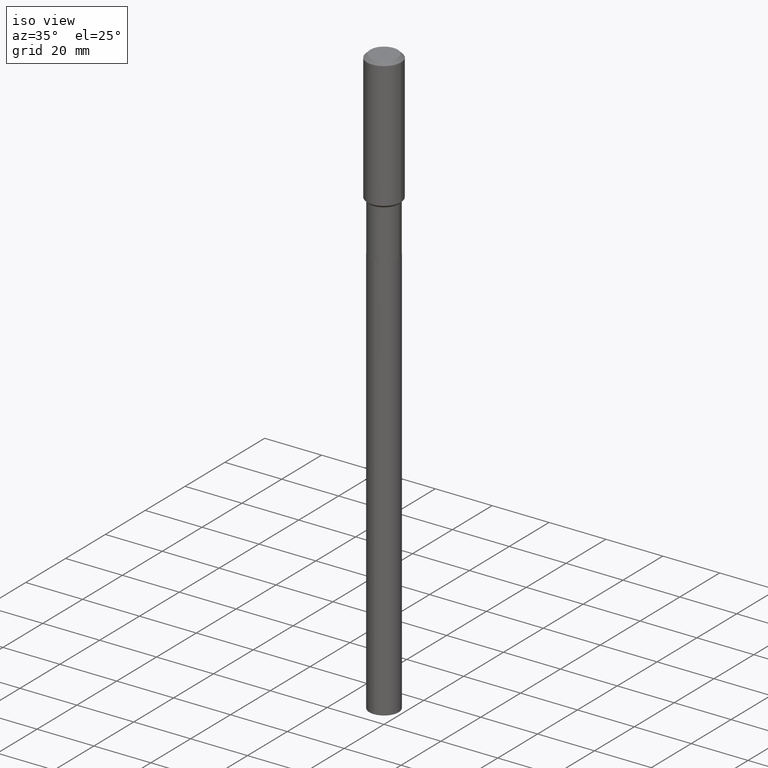
[diagram: clean part render]
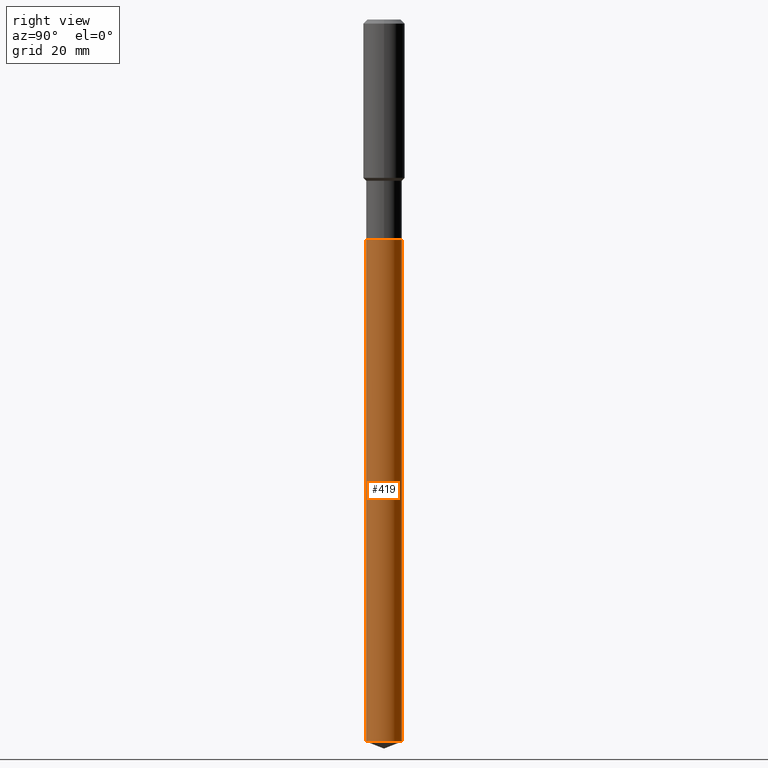
[diagram: tour spotlight — one face highlighted and labeled with its STEP entity id]
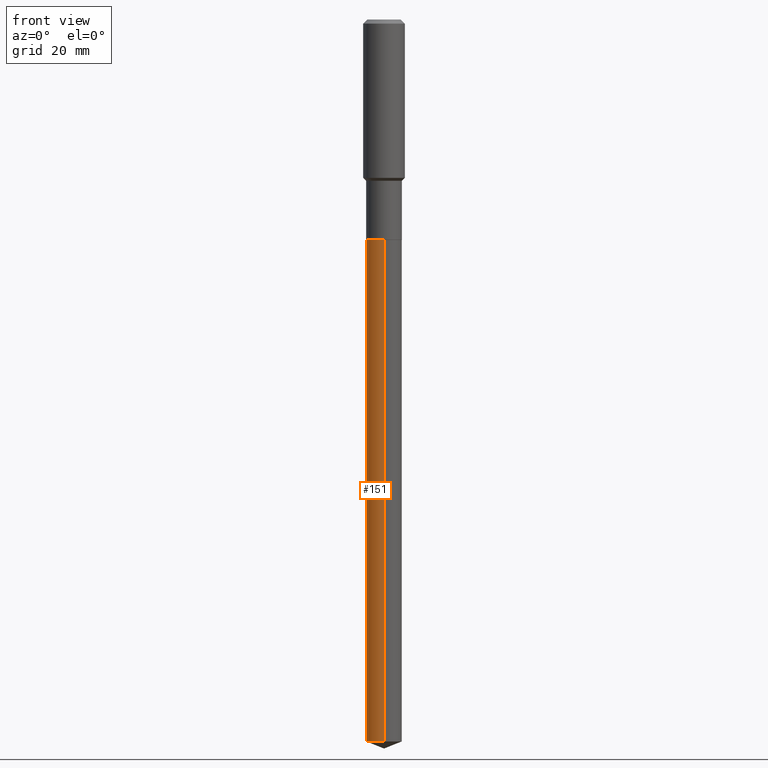
[diagram: tour spotlight — one face highlighted and labeled with its STEP entity id]
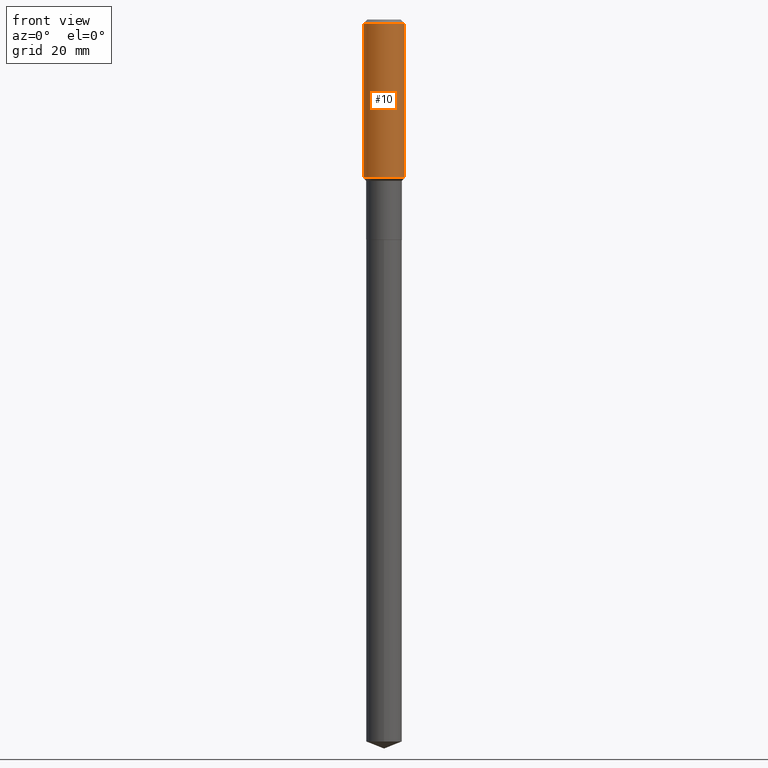
[diagram: tour spotlight — one face highlighted and labeled with its STEP entity id]
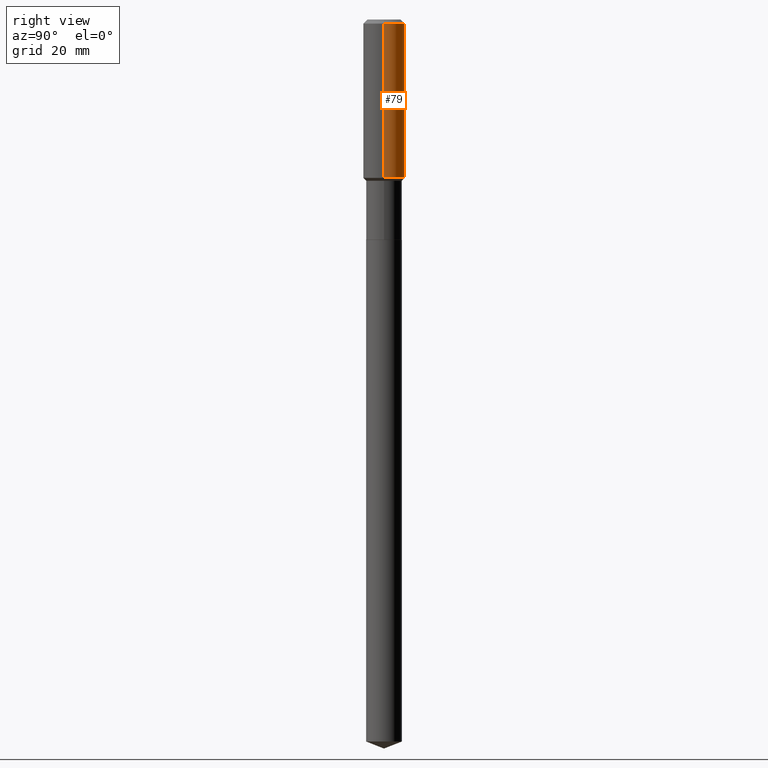
[diagram: tour spotlight — one face highlighted and labeled with its STEP entity id]
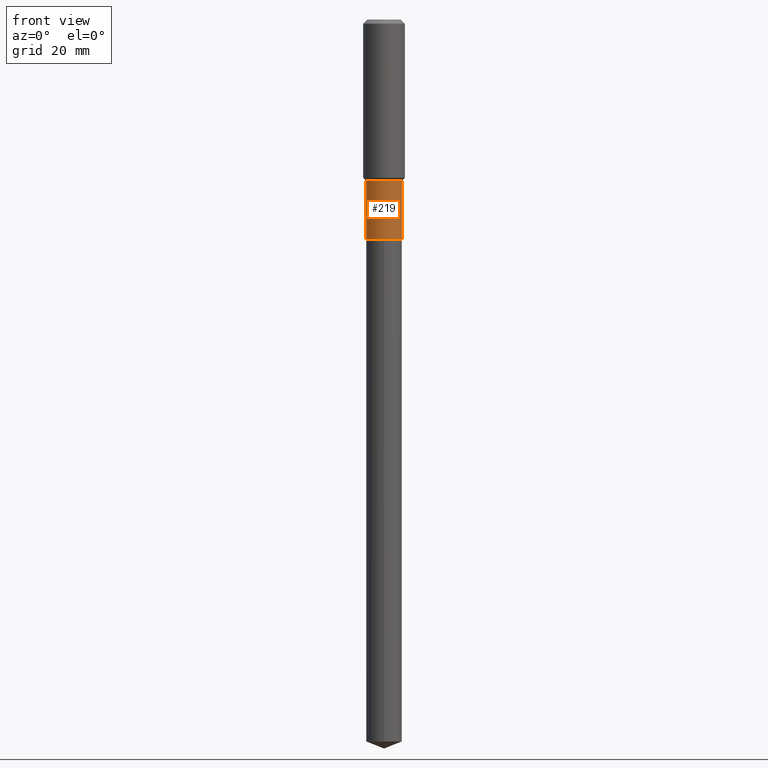
[diagram: tour spotlight — one face highlighted and labeled with its STEP entity id]
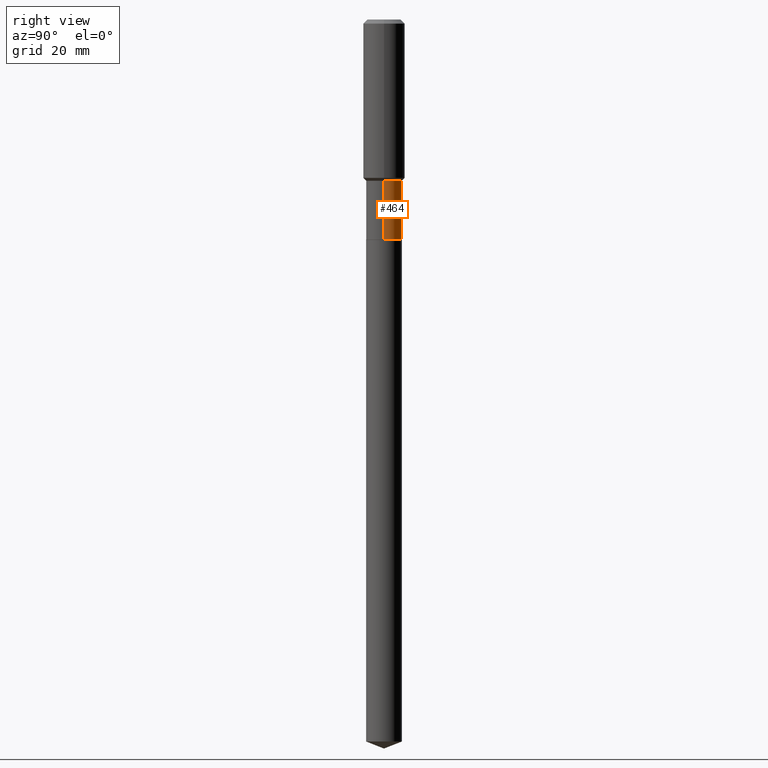
[diagram: tour spotlight — one face highlighted and labeled with its STEP entity id]
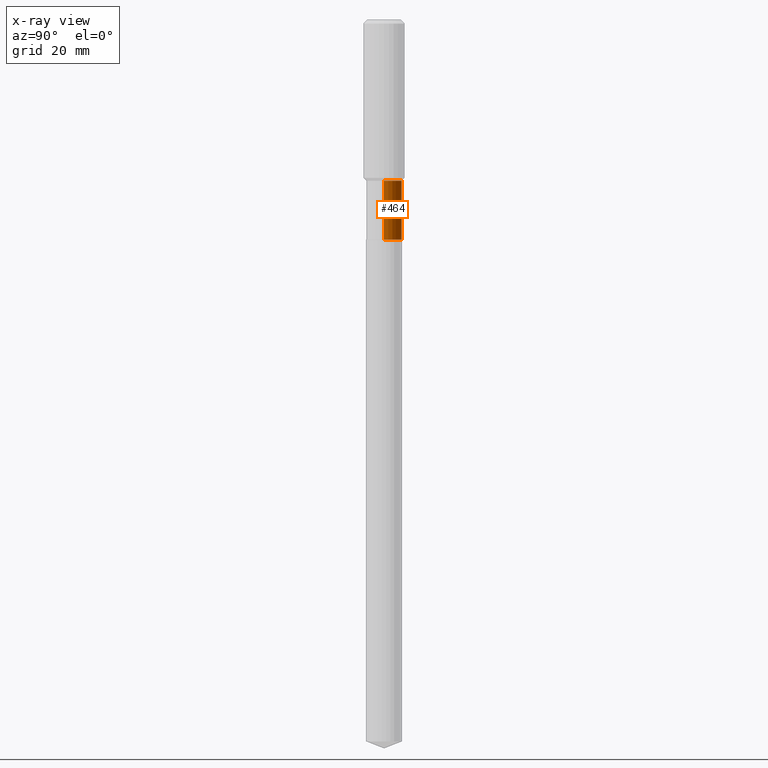
[diagram: x-ray of the same camera — body ghosted, this tour face saturated]
A machine part: a face-by-face anatomy tour. The part has 17 B-rep faces; the first image is the clean iso view, then the 6 largest visible faces are spotlighted one at a time (largest first), each with its STEP entity span.

Face 1 — right view, entity #419. In plain terms, the highlighted cylindrical surface (edge-blend (fillet) strip) has radius 5.1587 mm, axis along (-0, 0, 1).
Definition (entity closure, byte-faithful):
#3 = LINE ( 'NONE', #21, #351 ) ;
#5 = AXIS2_PLACEMENT_3D ( 'NONE', #53, #347, #23 ) ;
#8 = ORIENTED_EDGE ( 'NONE', *, *, #418, .T. ) ;
#11 = CARTESIAN_POINT ( 'NONE',  ( 6.111960187298512242E-29, -8.726259310170675626E-15, -2.499300000000000299 ) ) ;
#12 = DIRECTION ( 'NONE',  ( -2.445519969606461702E-29, 3.491408069911766717E-15, 1.000000000000000000 ) ) ;
#21 = CARTESIAN_POINT ( 'NONE',  ( -1.418239719838019639E-15, -0.2031000000000087458, -2.499299999999999855 ) ) ;
#23 = DIRECTION ( 'NONE',  ( -6.982962677686266711E-15, -1.000000000000000000, 5.380301316916323039E-15 ) ) ;
#45 = DIRECTION ( 'NONE',  ( -2.445519969606461983E-29, 3.491408069911766717E-15, 1.000000000000000000 ) ) ;
#48 = CARTESIAN_POINT ( 'NONE',  ( -1.418239719837880602E-15, -0.2031000000000285910, -8.187996782402608531 ) ) ;
#49 = ORIENTED_EDGE ( 'NONE', *, *, #396, .F. ) ;
#50 = VERTEX_POINT ( 'NONE', #285 ) ;
#53 = CARTESIAN_POINT ( 'NONE',  ( 2.002378176970011888E-28, -2.858782116353224988E-14, -8.187996782402610307 ) ) ;
#65 = ORIENTED_EDGE ( 'NONE', *, *, #352, .F. ) ;
#121 = LINE ( 'NONE', #222, #368 ) ;
#142 = DIRECTION ( 'NONE',  ( -6.982962677686266711E-15, -1.000000000000000000, 2.690150658458161520E-15 ) ) ;
#150 = DIRECTION ( 'NONE',  ( -2.445519969606461983E-29, 3.491408069911766717E-15, 1.000000000000000000 ) ) ;
#161 = EDGE_CURVE ( 'NONE', #427, #459, #421, .T. ) ;
#222 = CARTESIAN_POINT ( 'NONE',  ( 1.443112296328824437E-15, 0.2030999999999912597, -2.499300000000000743 ) ) ;
#226 = FACE_OUTER_BOUND ( 'NONE', #279, .T. ) ;
#279 = EDGE_LOOP ( 'NONE', ( #327, #8, #65, #49 ) ) ;
#285 = CARTESIAN_POINT ( 'NONE',  ( 1.443112296328964657E-15, 0.2030999999999913153, -2.499300000000000743 ) ) ;
#299 = DIRECTION ( 'NONE',  ( -6.982962677686266711E-15, -1.000000000000000000, 2.690150658458161520E-15 ) ) ;
#301 = VERTEX_POINT ( 'NONE', #453 ) ;
#327 = ORIENTED_EDGE ( 'NONE', *, *, #161, .T. ) ;
#331 = AXIS2_PLACEMENT_3D ( 'NONE', #374, #45, #299 ) ;
#347 = DIRECTION ( 'NONE',  ( -2.445519969606461983E-29, 3.491408069911766717E-15, 1.000000000000000000 ) ) ;
#351 = VECTOR ( 'NONE', #12, 39.37007874015748143 ) ;
#352 = EDGE_CURVE ( 'NONE', #301, #50, #423, .T. ) ;
#364 = AXIS2_PLACEMENT_3D ( 'NONE', #11, #150, #142 ) ;
#368 = VECTOR ( 'NONE', #417, 39.37007874015748143 ) ;
#374 = CARTESIAN_POINT ( 'NONE',  ( 6.111960187298512242E-29, -8.726259310170675626E-15, -2.499300000000000299 ) ) ;
#375 = CYLINDRICAL_SURFACE ( 'NONE', #331, 0.2031000000000000028 ) ;
#396 = EDGE_CURVE ( 'NONE', #427, #301, #3, .T. ) ;
#405 = CARTESIAN_POINT ( 'NONE',  ( 1.443112296328963671E-15, 0.2030999999999714700, -8.187996782402610307 ) ) ;
#417 = DIRECTION ( 'NONE',  ( -2.445519969606461702E-29, 3.491408069911766717E-15, 1.000000000000000000 ) ) ;
#418 = EDGE_CURVE ( 'NONE', #459, #50, #121, .T. ) ;
#419 = ADVANCED_FACE ( 'NONE', ( #226 ), #375, .T. ) ;
#421 = CIRCLE ( 'NONE', #5, 0.2031000000000000028 ) ;
#423 = CIRCLE ( 'NONE', #364, 0.2031000000000000028 ) ;
#427 = VERTEX_POINT ( 'NONE', #48 ) ;
#453 = CARTESIAN_POINT ( 'NONE',  ( -1.418239719838019639E-15, -0.2031000000000087458, -2.499299999999999855 ) ) ;
#459 = VERTEX_POINT ( 'NONE', #405 ) ;

Face 2 — front view, entity #151. In plain terms, the highlighted cylindrical surface (edge-blend (fillet) strip) has radius 5.1587 mm, axis along (-0, 0, 1).
Definition (entity closure, byte-faithful):
#3 = LINE ( 'NONE', #21, #351 ) ;
#12 = DIRECTION ( 'NONE',  ( -2.445519969606461702E-29, 3.491408069911766717E-15, 1.000000000000000000 ) ) ;
#19 = CARTESIAN_POINT ( 'NONE',  ( 6.111960187298512242E-29, -8.726259310170675626E-15, -2.499300000000000299 ) ) ;
#21 = CARTESIAN_POINT ( 'NONE',  ( -1.418239719838019639E-15, -0.2031000000000087458, -2.499299999999999855 ) ) ;
#32 = EDGE_CURVE ( 'NONE', #459, #427, #106, .T. ) ;
#48 = CARTESIAN_POINT ( 'NONE',  ( -1.418239719837880602E-15, -0.2031000000000285910, -8.187996782402608531 ) ) ;
#50 = VERTEX_POINT ( 'NONE', #285 ) ;
#56 = AXIS2_PLACEMENT_3D ( 'NONE', #293, #69, #458 ) ;
#69 = DIRECTION ( 'NONE',  ( -2.445519969606461983E-29, 3.491408069911766717E-15, 1.000000000000000000 ) ) ;
#92 = DIRECTION ( 'NONE',  ( -6.982962677686266711E-15, -1.000000000000000000, 5.380301316916323039E-15 ) ) ;
#106 = CIRCLE ( 'NONE', #350, 0.2031000000000000028 ) ;
#121 = LINE ( 'NONE', #222, #368 ) ;
#138 = CARTESIAN_POINT ( 'NONE',  ( 2.002378176970011888E-28, -2.858782116353224988E-14, -8.187996782402610307 ) ) ;
#141 = CIRCLE ( 'NONE', #262, 0.2031000000000000028 ) ;
#145 = CYLINDRICAL_SURFACE ( 'NONE', #56, 0.2031000000000000028 ) ;
#151 = ADVANCED_FACE ( 'NONE', ( #255 ), #145, .T. ) ;
#222 = CARTESIAN_POINT ( 'NONE',  ( 1.443112296328824437E-15, 0.2030999999999912597, -2.499300000000000743 ) ) ;
#255 = FACE_OUTER_BOUND ( 'NONE', #256, .T. ) ;
#256 = EDGE_LOOP ( 'NONE', ( #449, #392, #353, #275 ) ) ;
#262 = AXIS2_PLACEMENT_3D ( 'NONE', #19, #302, #337 ) ;
#275 = ORIENTED_EDGE ( 'NONE', *, *, #401, .F. ) ;
#285 = CARTESIAN_POINT ( 'NONE',  ( 1.443112296328964657E-15, 0.2030999999999913153, -2.499300000000000743 ) ) ;
#293 = CARTESIAN_POINT ( 'NONE',  ( 6.111960187298512242E-29, -8.726259310170675626E-15, -2.499300000000000299 ) ) ;
#301 = VERTEX_POINT ( 'NONE', #453 ) ;
#302 = DIRECTION ( 'NONE',  ( -2.445519969606461983E-29, 3.491408069911766717E-15, 1.000000000000000000 ) ) ;
#322 = DIRECTION ( 'NONE',  ( -2.445519969606461983E-29, 3.491408069911766717E-15, 1.000000000000000000 ) ) ;
#337 = DIRECTION ( 'NONE',  ( -6.982962677686266711E-15, -1.000000000000000000, 2.690150658458161520E-15 ) ) ;
#350 = AXIS2_PLACEMENT_3D ( 'NONE', #138, #322, #92 ) ;
#351 = VECTOR ( 'NONE', #12, 39.37007874015748143 ) ;
#353 = ORIENTED_EDGE ( 'NONE', *, *, #396, .T. ) ;
#368 = VECTOR ( 'NONE', #417, 39.37007874015748143 ) ;
#392 = ORIENTED_EDGE ( 'NONE', *, *, #32, .T. ) ;
#396 = EDGE_CURVE ( 'NONE', #427, #301, #3, .T. ) ;
#401 = EDGE_CURVE ( 'NONE', #50, #301, #141, .T. ) ;
#405 = CARTESIAN_POINT ( 'NONE',  ( 1.443112296328963671E-15, 0.2030999999999714700, -8.187996782402610307 ) ) ;
#417 = DIRECTION ( 'NONE',  ( -2.445519969606461702E-29, 3.491408069911766717E-15, 1.000000000000000000 ) ) ;
#418 = EDGE_CURVE ( 'NONE', #459, #50, #121, .T. ) ;
#427 = VERTEX_POINT ( 'NONE', #48 ) ;
#449 = ORIENTED_EDGE ( 'NONE', *, *, #418, .F. ) ;
#453 = CARTESIAN_POINT ( 'NONE',  ( -1.418239719838019639E-15, -0.2031000000000087458, -2.499299999999999855 ) ) ;
#458 = DIRECTION ( 'NONE',  ( -6.982962677686266711E-15, -1.000000000000000000, 2.690150658458161520E-15 ) ) ;
#459 = VERTEX_POINT ( 'NONE', #405 ) ;

Face 3 — front view, entity #10. In plain terms, the highlighted cylindrical surface (edge-blend (fillet) strip) has radius 5.9995 mm, axis along (-0, 0, 1).
Definition (entity closure, byte-faithful):
#10 = ADVANCED_FACE ( 'NONE', ( #170 ), #208, .T. ) ;
#17 = CIRCLE ( 'NONE', #339, 0.2361999999999999933 ) ;
#36 = AXIS2_PLACEMENT_3D ( 'NONE', #236, #387, #355 ) ;
#47 = EDGE_LOOP ( 'NONE', ( #240, #123, #268, #426 ) ) ;
#74 = DIRECTION ( 'NONE',  ( 1.000000000000000000, -6.982962677686266711E-15, 0.000000000000000000 ) ) ;
#94 = CARTESIAN_POINT ( 'NONE',  ( 1.155239464041864981E-30, -1.649375784469511119E-16, -0.04724000000000026789 ) ) ;
#101 = DIRECTION ( 'NONE',  ( -2.445468806185136877E-29, 3.491481338843145188E-15, 1.000000000000000000 ) ) ;
#104 = CARTESIAN_POINT ( 'NONE',  ( -0.2362000000000001043, 1.678301941865357380E-15, -1.161852468318209317E-29 ) ) ;
#109 = CARTESIAN_POINT ( 'NONE',  ( 0.2361999999999999933, -1.814313362916447440E-15, -0.04724000000000026789 ) ) ;
#110 = LINE ( 'NONE', #149, #378 ) ;
#123 = ORIENTED_EDGE ( 'NONE', *, *, #287, .T. ) ;
#133 = LINE ( 'NONE', #104, #260 ) ;
#135 = EDGE_CURVE ( 'NONE', #379, #465, #133, .T. ) ;
#137 = EDGE_CURVE ( 'NONE', #454, #336, #110, .T. ) ;
#149 = CARTESIAN_POINT ( 'NONE',  ( 0.2362000000000001043, -1.649375784469496920E-15, 1.151752954443000508E-29 ) ) ;
#170 = FACE_OUTER_BOUND ( 'NONE', #47, .T. ) ;
#192 = EDGE_CURVE ( 'NONE', #465, #336, #17, .T. ) ;
#208 = CYLINDRICAL_SURFACE ( 'NONE', #36, 0.2362000000000001043 ) ;
#236 = CARTESIAN_POINT ( 'NONE',  ( 0.000000000000000000, 0.000000000000000000, 0.000000000000000000 ) ) ;
#240 = ORIENTED_EDGE ( 'NONE', *, *, #135, .F. ) ;
#242 = CIRCLE ( 'NONE', #311, 0.2362000000000002153 ) ;
#251 = CARTESIAN_POINT ( 'NONE',  ( 0.2362000000000002153, -7.920076269031788202E-15, -1.796000000000000263 ) ) ;
#260 = VECTOR ( 'NONE', #101, 39.37007874015748143 ) ;
#261 = DIRECTION ( 'NONE',  ( -2.445468806185136597E-29, 3.491481338843145583E-15, 1.000000000000000000 ) ) ;
#268 = ORIENTED_EDGE ( 'NONE', *, *, #137, .T. ) ;
#287 = EDGE_CURVE ( 'NONE', #379, #454, #242, .T. ) ;
#297 = DIRECTION ( 'NONE',  ( -2.445468806185136877E-29, 3.491481338843145188E-15, 1.000000000000000000 ) ) ;
#311 = AXIS2_PLACEMENT_3D ( 'NONE', #334, #261, #74 ) ;
#334 = CARTESIAN_POINT ( 'NONE',  ( 4.392061975908506041E-29, -6.270700484562290099E-15, -1.796000000000000263 ) ) ;
#336 = VERTEX_POINT ( 'NONE', #109 ) ;
#339 = AXIS2_PLACEMENT_3D ( 'NONE', #94, #390, #478 ) ;
#355 = DIRECTION ( 'NONE',  ( 1.000000000000000000, -6.982962677686266711E-15, 4.876176775795935793E-29 ) ) ;
#378 = VECTOR ( 'NONE', #297, 39.37007874015748143 ) ;
#379 = VERTEX_POINT ( 'NONE', #446 ) ;
#387 = DIRECTION ( 'NONE',  ( -2.445468806185136597E-29, 3.491481338843145583E-15, 1.000000000000000000 ) ) ;
#390 = DIRECTION ( 'NONE',  ( -2.445468806185136597E-29, 3.491481338843145583E-15, 1.000000000000000000 ) ) ;
#408 = CARTESIAN_POINT ( 'NONE',  ( -0.2361999999999999933, -1.539517089639262929E-15, -0.04724000000000026789 ) ) ;
#426 = ORIENTED_EDGE ( 'NONE', *, *, #192, .F. ) ;
#446 = CARTESIAN_POINT ( 'NONE',  ( -0.2362000000000002153, -4.592398542696931338E-15, -1.796000000000000263 ) ) ;
#454 = VERTEX_POINT ( 'NONE', #251 ) ;
#465 = VERTEX_POINT ( 'NONE', #408 ) ;
#478 = DIRECTION ( 'NONE',  ( 1.000000000000000000, -6.982962677686266711E-15, 0.000000000000000000 ) ) ;

Face 4 — right view, entity #79. In plain terms, the highlighted cylindrical surface (edge-blend (fillet) strip) has radius 5.9995 mm, axis along (-0, 0, 1).
Definition (entity closure, byte-faithful):
#9 = FACE_OUTER_BOUND ( 'NONE', #257, .T. ) ;
#46 = EDGE_CURVE ( 'NONE', #336, #465, #139, .T. ) ;
#54 = ORIENTED_EDGE ( 'NONE', *, *, #135, .T. ) ;
#59 = CARTESIAN_POINT ( 'NONE',  ( 0.000000000000000000, 0.000000000000000000, 0.000000000000000000 ) ) ;
#67 = CARTESIAN_POINT ( 'NONE',  ( 4.392061975908506041E-29, -6.270700484562290099E-15, -1.796000000000000263 ) ) ;
#73 = AXIS2_PLACEMENT_3D ( 'NONE', #67, #221, #184 ) ;
#79 = ADVANCED_FACE ( 'NONE', ( #9 ), #469, .T. ) ;
#80 = ORIENTED_EDGE ( 'NONE', *, *, #137, .F. ) ;
#96 = DIRECTION ( 'NONE',  ( 1.000000000000000000, -6.982962677686266711E-15, 0.000000000000000000 ) ) ;
#101 = DIRECTION ( 'NONE',  ( -2.445468806185136877E-29, 3.491481338843145188E-15, 1.000000000000000000 ) ) ;
#104 = CARTESIAN_POINT ( 'NONE',  ( -0.2362000000000001043, 1.678301941865357380E-15, -1.161852468318209317E-29 ) ) ;
#109 = CARTESIAN_POINT ( 'NONE',  ( 0.2361999999999999933, -1.814313362916447440E-15, -0.04724000000000026789 ) ) ;
#110 = LINE ( 'NONE', #149, #378 ) ;
#133 = LINE ( 'NONE', #104, #260 ) ;
#135 = EDGE_CURVE ( 'NONE', #379, #465, #133, .T. ) ;
#137 = EDGE_CURVE ( 'NONE', #454, #336, #110, .T. ) ;
#139 = CIRCLE ( 'NONE', #410, 0.2361999999999999933 ) ;
#147 = AXIS2_PLACEMENT_3D ( 'NONE', #59, #163, #317 ) ;
#149 = CARTESIAN_POINT ( 'NONE',  ( 0.2362000000000001043, -1.649375784469496920E-15, 1.151752954443000508E-29 ) ) ;
#163 = DIRECTION ( 'NONE',  ( -2.445468806185136597E-29, 3.491481338843145583E-15, 1.000000000000000000 ) ) ;
#184 = DIRECTION ( 'NONE',  ( 1.000000000000000000, -6.982962677686266711E-15, 0.000000000000000000 ) ) ;
#191 = CIRCLE ( 'NONE', #73, 0.2362000000000002153 ) ;
#221 = DIRECTION ( 'NONE',  ( -2.445468806185136597E-29, 3.491481338843145583E-15, 1.000000000000000000 ) ) ;
#251 = CARTESIAN_POINT ( 'NONE',  ( 0.2362000000000002153, -7.920076269031788202E-15, -1.796000000000000263 ) ) ;
#257 = EDGE_LOOP ( 'NONE', ( #424, #54, #425, #80 ) ) ;
#260 = VECTOR ( 'NONE', #101, 39.37007874015748143 ) ;
#281 = CARTESIAN_POINT ( 'NONE',  ( 1.155239464041864981E-30, -1.649375784469511119E-16, -0.04724000000000026789 ) ) ;
#297 = DIRECTION ( 'NONE',  ( -2.445468806185136877E-29, 3.491481338843145188E-15, 1.000000000000000000 ) ) ;
#316 = EDGE_CURVE ( 'NONE', #454, #379, #191, .T. ) ;
#317 = DIRECTION ( 'NONE',  ( 1.000000000000000000, -6.982962677686266711E-15, 4.876176775795935793E-29 ) ) ;
#336 = VERTEX_POINT ( 'NONE', #109 ) ;
#378 = VECTOR ( 'NONE', #297, 39.37007874015748143 ) ;
#379 = VERTEX_POINT ( 'NONE', #446 ) ;
#408 = CARTESIAN_POINT ( 'NONE',  ( -0.2361999999999999933, -1.539517089639262929E-15, -0.04724000000000026789 ) ) ;
#410 = AXIS2_PLACEMENT_3D ( 'NONE', #281, #438, #96 ) ;
#424 = ORIENTED_EDGE ( 'NONE', *, *, #316, .T. ) ;
#425 = ORIENTED_EDGE ( 'NONE', *, *, #46, .F. ) ;
#438 = DIRECTION ( 'NONE',  ( -2.445468806185136597E-29, 3.491481338843145583E-15, 1.000000000000000000 ) ) ;
#446 = CARTESIAN_POINT ( 'NONE',  ( -0.2362000000000002153, -4.592398542696931338E-15, -1.796000000000000263 ) ) ;
#454 = VERTEX_POINT ( 'NONE', #251 ) ;
#465 = VERTEX_POINT ( 'NONE', #408 ) ;
#469 = CYLINDRICAL_SURFACE ( 'NONE', #147, 0.2362000000000001043 ) ;

Face 5 — front view, entity #219. In plain terms, the highlighted cylindrical surface (edge-blend (fillet) strip) has radius 5.1587 mm, axis along (-0, 0, 1).
Definition (entity closure, byte-faithful):
#1 = DIRECTION ( 'NONE',  ( -2.445468806185136597E-29, 3.491481338843145583E-15, 1.000000000000000000 ) ) ;
#4 = EDGE_LOOP ( 'NONE', ( #82, #332, #108, #342 ) ) ;
#29 = AXIS2_PLACEMENT_3D ( 'NONE', #481, #239, #37 ) ;
#34 = DIRECTION ( 'NONE',  ( 1.000000000000000000, -6.982962677686266711E-15, 0.000000000000000000 ) ) ;
#37 = DIRECTION ( 'NONE',  ( 1.000000000000000000, -6.982962677686266711E-15, 4.876176775795935793E-29 ) ) ;
#60 = AXIS2_PLACEMENT_3D ( 'NONE', #204, #64, #34 ) ;
#64 = DIRECTION ( 'NONE',  ( -2.445468806185136597E-29, 3.491481338843145583E-15, 1.000000000000000000 ) ) ;
#71 = CARTESIAN_POINT ( 'NONE',  ( -0.2030999999999999472, -6.112278746860862354E-15, -1.829100000000000392 ) ) ;
#76 = AXIS2_PLACEMENT_3D ( 'NONE', #397, #1, #294 ) ;
#82 = ORIENTED_EDGE ( 'NONE', *, *, #442, .F. ) ;
#90 = FACE_OUTER_BOUND ( 'NONE', #4, .T. ) ;
#105 = EDGE_CURVE ( 'NONE', #388, #200, #252, .T. ) ;
#108 = ORIENTED_EDGE ( 'NONE', *, *, #224, .T. ) ;
#112 = CARTESIAN_POINT ( 'NONE',  ( -0.2030999999999999750, 1.443112296328763300E-15, -9.990357168307712801E-30 ) ) ;
#128 = CIRCLE ( 'NONE', #60, 0.2030999999999999472 ) ;
#140 = VERTEX_POINT ( 'NONE', #71 ) ;
#183 = VECTOR ( 'NONE', #207, 39.37007874015748143 ) ;
#194 = EDGE_CURVE ( 'NONE', #140, #348, #128, .T. ) ;
#200 = VERTEX_POINT ( 'NONE', #282 ) ;
#204 = CARTESIAN_POINT ( 'NONE',  ( 4.473006993393234028E-29, -6.386268516877998368E-15, -1.829100000000000392 ) ) ;
#207 = DIRECTION ( 'NONE',  ( -2.445468806185136877E-29, 3.491481338843145188E-15, 1.000000000000000000 ) ) ;
#213 = CARTESIAN_POINT ( 'NONE',  ( 0.2030999999999999472, -7.804508236716079144E-15, -1.829100000000000392 ) ) ;
#219 = ADVANCED_FACE ( 'NONE', ( #90 ), #247, .T. ) ;
#224 = EDGE_CURVE ( 'NONE', #200, #348, #313, .T. ) ;
#239 = DIRECTION ( 'NONE',  ( -2.445468806185136597E-29, 3.491481338843145583E-15, 1.000000000000000000 ) ) ;
#247 = CYLINDRICAL_SURFACE ( 'NONE', #29, 0.2030999999999999750 ) ;
#252 = CIRCLE ( 'NONE', #76, 0.2031000000000000028 ) ;
#253 = CARTESIAN_POINT ( 'NONE',  ( -0.2031000000000000028, -6.112278746860861565E-15, -2.498800000000000132 ) ) ;
#259 = DIRECTION ( 'NONE',  ( -2.445468806185136877E-29, 3.491481338843145188E-15, 1.000000000000000000 ) ) ;
#282 = CARTESIAN_POINT ( 'NONE',  ( 0.2031000000000000028, -1.014275328933933332E-14, -2.498800000000000132 ) ) ;
#294 = DIRECTION ( 'NONE',  ( 1.000000000000000000, -6.982962677686269866E-15, 0.000000000000000000 ) ) ;
#313 = LINE ( 'NONE', #362, #183 ) ;
#332 = ORIENTED_EDGE ( 'NONE', *, *, #105, .T. ) ;
#342 = ORIENTED_EDGE ( 'NONE', *, *, #194, .F. ) ;
#348 = VERTEX_POINT ( 'NONE', #213 ) ;
#357 = VECTOR ( 'NONE', #259, 39.37007874015748143 ) ;
#362 = CARTESIAN_POINT ( 'NONE',  ( 0.2030999999999999750, -1.418239719838080578E-15, 9.903515031641544743E-30 ) ) ;
#388 = VERTEX_POINT ( 'NONE', #253 ) ;
#397 = CARTESIAN_POINT ( 'NONE',  ( 6.110737452895419441E-29, -8.724513569501253334E-15, -2.498800000000000132 ) ) ;
#442 = EDGE_CURVE ( 'NONE', #388, #140, #452, .T. ) ;
#452 = LINE ( 'NONE', #112, #357 ) ;
#481 = CARTESIAN_POINT ( 'NONE',  ( 0.000000000000000000, 0.000000000000000000, 0.000000000000000000 ) ) ;

Face 6 — right view, entity #464. An x-ray twin of the same camera follows (body ghosted, this face saturated) — the face is partly hidden behind the body. In plain terms, the highlighted cylindrical surface (edge-blend (fillet) strip) has radius 5.1587 mm, axis along (-0, 0, 1).
Definition (entity closure, byte-faithful):
#6 = CIRCLE ( 'NONE', #385, 0.2030999999999999472 ) ;
#13 = CYLINDRICAL_SURFACE ( 'NONE', #57, 0.2030999999999999750 ) ;
#16 = CARTESIAN_POINT ( 'NONE',  ( 0.000000000000000000, 0.000000000000000000, 0.000000000000000000 ) ) ;
#27 = ORIENTED_EDGE ( 'NONE', *, *, #209, .F. ) ;
#57 = AXIS2_PLACEMENT_3D ( 'NONE', #16, #229, #460 ) ;
#71 = CARTESIAN_POINT ( 'NONE',  ( -0.2030999999999999472, -6.112278746860862354E-15, -1.829100000000000392 ) ) ;
#81 = ORIENTED_EDGE ( 'NONE', *, *, #177, .T. ) ;
#100 = DIRECTION ( 'NONE',  ( 1.000000000000000000, -6.982962677686266711E-15, 0.000000000000000000 ) ) ;
#112 = CARTESIAN_POINT ( 'NONE',  ( -0.2030999999999999750, 1.443112296328763300E-15, -9.990357168307712801E-30 ) ) ;
#140 = VERTEX_POINT ( 'NONE', #71 ) ;
#165 = DIRECTION ( 'NONE',  ( 1.000000000000000000, -6.982962677686269866E-15, 0.000000000000000000 ) ) ;
#167 = EDGE_LOOP ( 'NONE', ( #81, #231, #27, #298 ) ) ;
#177 = EDGE_CURVE ( 'NONE', #200, #388, #326, .T. ) ;
#183 = VECTOR ( 'NONE', #207, 39.37007874015748143 ) ;
#200 = VERTEX_POINT ( 'NONE', #282 ) ;
#207 = DIRECTION ( 'NONE',  ( -2.445468806185136877E-29, 3.491481338843145188E-15, 1.000000000000000000 ) ) ;
#209 = EDGE_CURVE ( 'NONE', #348, #140, #6, .T. ) ;
#212 = AXIS2_PLACEMENT_3D ( 'NONE', #434, #487, #165 ) ;
#213 = CARTESIAN_POINT ( 'NONE',  ( 0.2030999999999999472, -7.804508236716079144E-15, -1.829100000000000392 ) ) ;
#224 = EDGE_CURVE ( 'NONE', #200, #348, #313, .T. ) ;
#229 = DIRECTION ( 'NONE',  ( -2.445468806185136597E-29, 3.491481338843145583E-15, 1.000000000000000000 ) ) ;
#231 = ORIENTED_EDGE ( 'NONE', *, *, #442, .T. ) ;
#237 = DIRECTION ( 'NONE',  ( -2.445468806185136597E-29, 3.491481338843145583E-15, 1.000000000000000000 ) ) ;
#253 = CARTESIAN_POINT ( 'NONE',  ( -0.2031000000000000028, -6.112278746860861565E-15, -2.498800000000000132 ) ) ;
#259 = DIRECTION ( 'NONE',  ( -2.445468806185136877E-29, 3.491481338843145188E-15, 1.000000000000000000 ) ) ;
#282 = CARTESIAN_POINT ( 'NONE',  ( 0.2031000000000000028, -1.014275328933933332E-14, -2.498800000000000132 ) ) ;
#298 = ORIENTED_EDGE ( 'NONE', *, *, #224, .F. ) ;
#313 = LINE ( 'NONE', #362, #183 ) ;
#326 = CIRCLE ( 'NONE', #212, 0.2031000000000000028 ) ;
#348 = VERTEX_POINT ( 'NONE', #213 ) ;
#357 = VECTOR ( 'NONE', #259, 39.37007874015748143 ) ;
#362 = CARTESIAN_POINT ( 'NONE',  ( 0.2030999999999999750, -1.418239719838080578E-15, 9.903515031641544743E-30 ) ) ;
#385 = AXIS2_PLACEMENT_3D ( 'NONE', #395, #237, #100 ) ;
#388 = VERTEX_POINT ( 'NONE', #253 ) ;
#395 = CARTESIAN_POINT ( 'NONE',  ( 4.473006993393234028E-29, -6.386268516877998368E-15, -1.829100000000000392 ) ) ;
#434 = CARTESIAN_POINT ( 'NONE',  ( 6.110737452895419441E-29, -8.724513569501253334E-15, -2.498800000000000132 ) ) ;
#442 = EDGE_CURVE ( 'NONE', #388, #140, #452, .T. ) ;
#452 = LINE ( 'NONE', #112, #357 ) ;
#456 = FACE_OUTER_BOUND ( 'NONE', #167, .T. ) ;
#460 = DIRECTION ( 'NONE',  ( 1.000000000000000000, -6.982962677686266711E-15, 4.876176775795935793E-29 ) ) ;
#464 = ADVANCED_FACE ( 'NONE', ( #456 ), #13, .T. ) ;
#487 = DIRECTION ( 'NONE',  ( -2.445468806185136597E-29, 3.491481338843145583E-15, 1.000000000000000000 ) ) ;